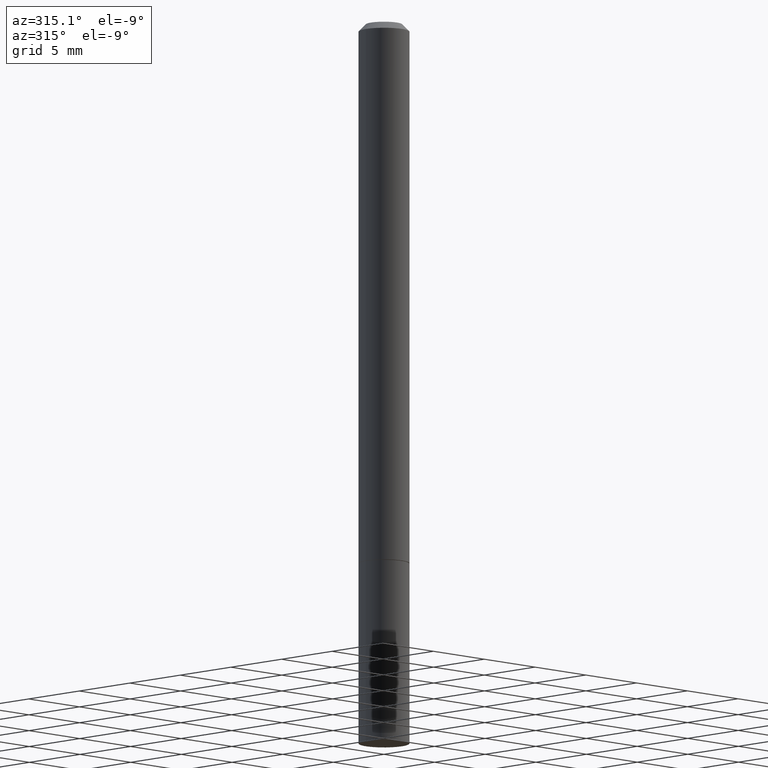
[diagram: clean part render]
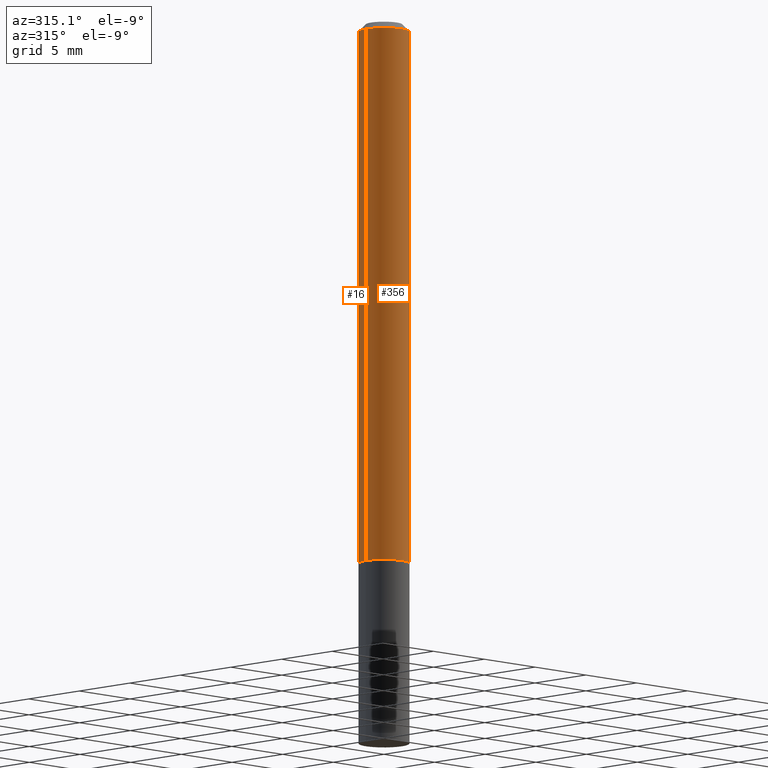
[diagram: same view with one multi-face feature highlighted, each face labeled with its STEP entity id]
A machine part, auxiliary view. The highlighted faces form ONE feature: a constant-radius fillet chain: 2 tangent blend faces with common blend radius 1.7856 mm. The faces share edges in the B-rep.
Their STEP definitions:
[1] entity #16 (Cylinder):
#12 = AXIS2_PLACEMENT_3D ( 'NONE', #333, #158, #385 ) ;
#16 = ADVANCED_FACE ( 'NONE', ( #194 ), #152, .T. ) ;
#19 = CARTESIAN_POINT ( 'NONE',  ( 0.07030000000000000138, -5.724632803167218539E-15, -1.498999999999999444 ) ) ;
#20 = CIRCLE ( 'NONE', #33, 0.07030000000000000138 ) ;
#27 = DIRECTION ( 'NONE',  ( 1.000000000000000000, -6.982962677686265133E-15, 0.000000000000000000 ) ) ;
#33 = AXIS2_PLACEMENT_3D ( 'NONE', #299, #94, #27 ) ;
#41 = CARTESIAN_POINT ( 'NONE',  ( -0.07030000000000000138, -2.152268533612014652E-15, -1.498999999999999444 ) ) ;
#45 = ORIENTED_EDGE ( 'NONE', *, *, #138, .T. ) ;
#63 = CARTESIAN_POINT ( 'NONE',  ( 0.07029999999999990423, -4.909022762413438627E-16, 3.427952273384538232E-30 ) ) ;
#75 = DIRECTION ( 'NONE',  ( 1.000000000000000000, -6.982962677686267499E-15, 0.000000000000000000 ) ) ;
#84 = VERTEX_POINT ( 'NONE', #245 ) ;
#94 = DIRECTION ( 'NONE',  ( -2.445468806185136597E-29, 3.491481338843145583E-15, 1.000000000000000000 ) ) ;
#100 = EDGE_CURVE ( 'NONE', #266, #111, #276, .T. ) ;
#111 = VERTEX_POINT ( 'NONE', #267 ) ;
#122 = EDGE_CURVE ( 'NONE', #379, #84, #244, .T. ) ;
#138 = EDGE_CURVE ( 'NONE', #379, #266, #20, .T. ) ;
#141 = ORIENTED_EDGE ( 'NONE', *, *, #230, .F. ) ;
#142 = EDGE_LOOP ( 'NONE', ( #45, #237, #141, #316 ) ) ;
#152 = CYLINDRICAL_SURFACE ( 'NONE', #12, 0.07029999999999990423 ) ;
#158 = DIRECTION ( 'NONE',  ( -2.445468806185136597E-29, 3.491481338843145583E-15, 1.000000000000000000 ) ) ;
#159 = DIRECTION ( 'NONE',  ( -2.445468806185136877E-29, 3.491481338843145188E-15, 1.000000000000000000 ) ) ;
#194 = FACE_OUTER_BOUND ( 'NONE', #142, .T. ) ;
#200 = DIRECTION ( 'NONE',  ( -2.445468806185136597E-29, 3.491481338843145583E-15, 1.000000000000000000 ) ) ;
#230 = EDGE_CURVE ( 'NONE', #84, #111, #289, .T. ) ;
#237 = ORIENTED_EDGE ( 'NONE', *, *, #100, .T. ) ;
#244 = LINE ( 'NONE', #63, #348 ) ;
#245 = CARTESIAN_POINT ( 'NONE',  ( 0.07029999999999980709, -5.521226360202004844E-16, -0.02000000000000004205 ) ) ;
#252 = AXIS2_PLACEMENT_3D ( 'NONE', #370, #200, #75 ) ;
#266 = VERTEX_POINT ( 'NONE', #41 ) ;
#267 = CARTESIAN_POINT ( 'NONE',  ( -0.07029999999999980709, 4.210726494644801207E-16, -0.02000000000000004205 ) ) ;
#276 = LINE ( 'NONE', #324, #313 ) ;
#289 = CIRCLE ( 'NONE', #252, 0.07029999999999980709 ) ;
#299 = CARTESIAN_POINT ( 'NONE',  ( 3.665757740471518171E-29, -5.233730526925873592E-15, -1.498999999999999444 ) ) ;
#313 = VECTOR ( 'NONE', #159, 39.37007874015748143 ) ;
#316 = ORIENTED_EDGE ( 'NONE', *, *, #122, .F. ) ;
#324 = CARTESIAN_POINT ( 'NONE',  ( -0.07029999999999990423, 4.995115432393497502E-16, -3.458011368449193965E-30 ) ) ;
#333 = CARTESIAN_POINT ( 'NONE',  ( 0.000000000000000000, 0.000000000000000000, 0.000000000000000000 ) ) ;
#348 = VECTOR ( 'NONE', #359, 39.37007874015748143 ) ;
#359 = DIRECTION ( 'NONE',  ( -2.445468806185136877E-29, 3.491481338843145188E-15, 1.000000000000000000 ) ) ;
#370 = CARTESIAN_POINT ( 'NONE',  ( 4.890937612370283668E-31, -6.982962677686305168E-17, -0.02000000000000004205 ) ) ;
#379 = VERTEX_POINT ( 'NONE', #19 ) ;
#385 = DIRECTION ( 'NONE',  ( 1.000000000000000000, -6.982962677686266711E-15, 4.876176775795935793E-29 ) ) ;
[2] entity #356 (Cylinder):
#1 = DIRECTION ( 'NONE',  ( -2.445468806185136597E-29, 3.491481338843145583E-15, 1.000000000000000000 ) ) ;
#19 = CARTESIAN_POINT ( 'NONE',  ( 0.07030000000000000138, -5.724632803167218539E-15, -1.498999999999999444 ) ) ;
#41 = CARTESIAN_POINT ( 'NONE',  ( -0.07030000000000000138, -2.152268533612014652E-15, -1.498999999999999444 ) ) ;
#62 = ORIENTED_EDGE ( 'NONE', *, *, #122, .T. ) ;
#63 = CARTESIAN_POINT ( 'NONE',  ( 0.07029999999999990423, -4.909022762413438627E-16, 3.427952273384538232E-30 ) ) ;
#65 = CARTESIAN_POINT ( 'NONE',  ( 4.890937612370283668E-31, -6.982962677686305168E-17, -0.02000000000000004205 ) ) ;
#84 = VERTEX_POINT ( 'NONE', #245 ) ;
#100 = EDGE_CURVE ( 'NONE', #266, #111, #276, .T. ) ;
#111 = VERTEX_POINT ( 'NONE', #267 ) ;
#122 = EDGE_CURVE ( 'NONE', #379, #84, #244, .T. ) ;
#128 = EDGE_CURVE ( 'NONE', #111, #84, #147, .T. ) ;
#147 = CIRCLE ( 'NONE', #362, 0.07029999999999980709 ) ;
#159 = DIRECTION ( 'NONE',  ( -2.445468806185136877E-29, 3.491481338843145188E-15, 1.000000000000000000 ) ) ;
#176 = CYLINDRICAL_SURFACE ( 'NONE', #320, 0.07029999999999990423 ) ;
#216 = DIRECTION ( 'NONE',  ( 1.000000000000000000, -6.982962677686267499E-15, 0.000000000000000000 ) ) ;
#223 = DIRECTION ( 'NONE',  ( 1.000000000000000000, -6.982962677686265133E-15, 0.000000000000000000 ) ) ;
#234 = DIRECTION ( 'NONE',  ( -2.445468806185136597E-29, 3.491481338843145583E-15, 1.000000000000000000 ) ) ;
#241 = EDGE_LOOP ( 'NONE', ( #360, #295, #62, #383 ) ) ;
#244 = LINE ( 'NONE', #63, #348 ) ;
#245 = CARTESIAN_POINT ( 'NONE',  ( 0.07029999999999980709, -5.521226360202004844E-16, -0.02000000000000004205 ) ) ;
#264 = CIRCLE ( 'NONE', #277, 0.07030000000000000138 ) ;
#266 = VERTEX_POINT ( 'NONE', #41 ) ;
#267 = CARTESIAN_POINT ( 'NONE',  ( -0.07029999999999980709, 4.210726494644801207E-16, -0.02000000000000004205 ) ) ;
#276 = LINE ( 'NONE', #324, #313 ) ;
#277 = AXIS2_PLACEMENT_3D ( 'NONE', #279, #1, #223 ) ;
#279 = CARTESIAN_POINT ( 'NONE',  ( 3.665757740471518171E-29, -5.233730526925873592E-15, -1.498999999999999444 ) ) ;
#286 = EDGE_CURVE ( 'NONE', #266, #379, #264, .T. ) ;
#292 = DIRECTION ( 'NONE',  ( 1.000000000000000000, -6.982962677686266711E-15, 4.876176775795935793E-29 ) ) ;
#295 = ORIENTED_EDGE ( 'NONE', *, *, #286, .T. ) ;
#313 = VECTOR ( 'NONE', #159, 39.37007874015748143 ) ;
#320 = AXIS2_PLACEMENT_3D ( 'NONE', #381, #234, #292 ) ;
#324 = CARTESIAN_POINT ( 'NONE',  ( -0.07029999999999990423, 4.995115432393497502E-16, -3.458011368449193965E-30 ) ) ;
#348 = VECTOR ( 'NONE', #359, 39.37007874015748143 ) ;
#354 = FACE_OUTER_BOUND ( 'NONE', #241, .T. ) ;
#356 = ADVANCED_FACE ( 'NONE', ( #354 ), #176, .T. ) ;
#359 = DIRECTION ( 'NONE',  ( -2.445468806185136877E-29, 3.491481338843145188E-15, 1.000000000000000000 ) ) ;
#360 = ORIENTED_EDGE ( 'NONE', *, *, #100, .F. ) ;
#362 = AXIS2_PLACEMENT_3D ( 'NONE', #65, #384, #216 ) ;
#379 = VERTEX_POINT ( 'NONE', #19 ) ;
#381 = CARTESIAN_POINT ( 'NONE',  ( 0.000000000000000000, 0.000000000000000000, 0.000000000000000000 ) ) ;
#383 = ORIENTED_EDGE ( 'NONE', *, *, #128, .F. ) ;
#384 = DIRECTION ( 'NONE',  ( -2.445468806185136597E-29, 3.491481338843145583E-15, 1.000000000000000000 ) ) ;